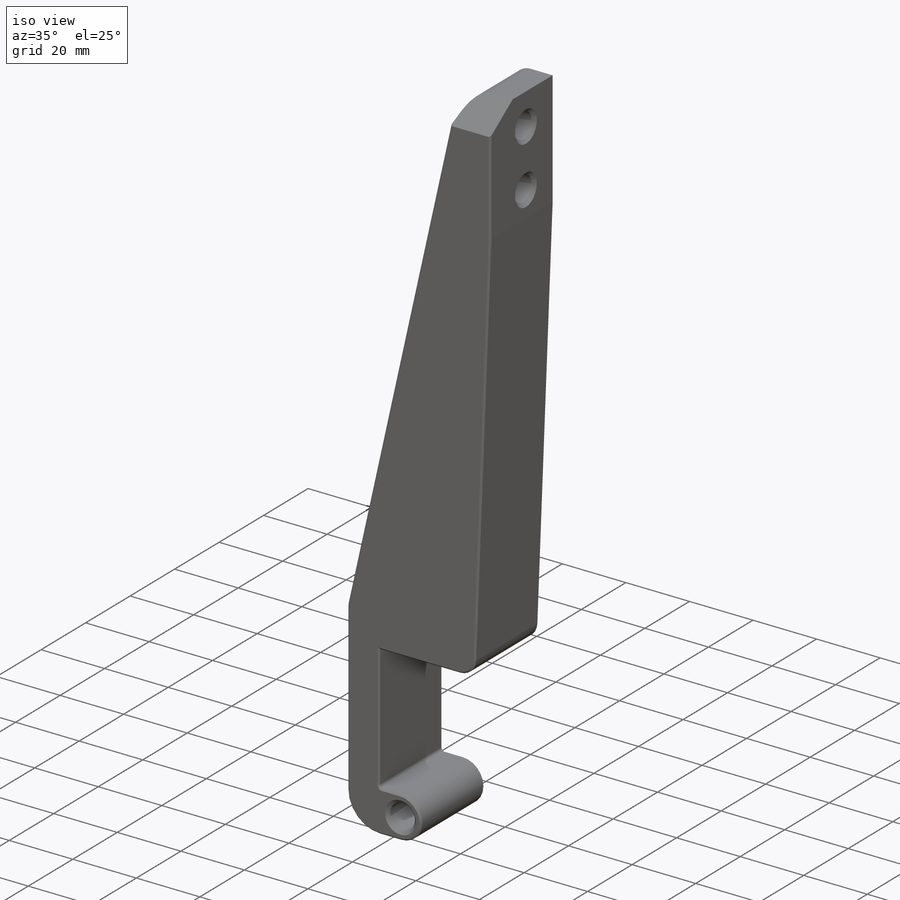
[diagram: iso view]
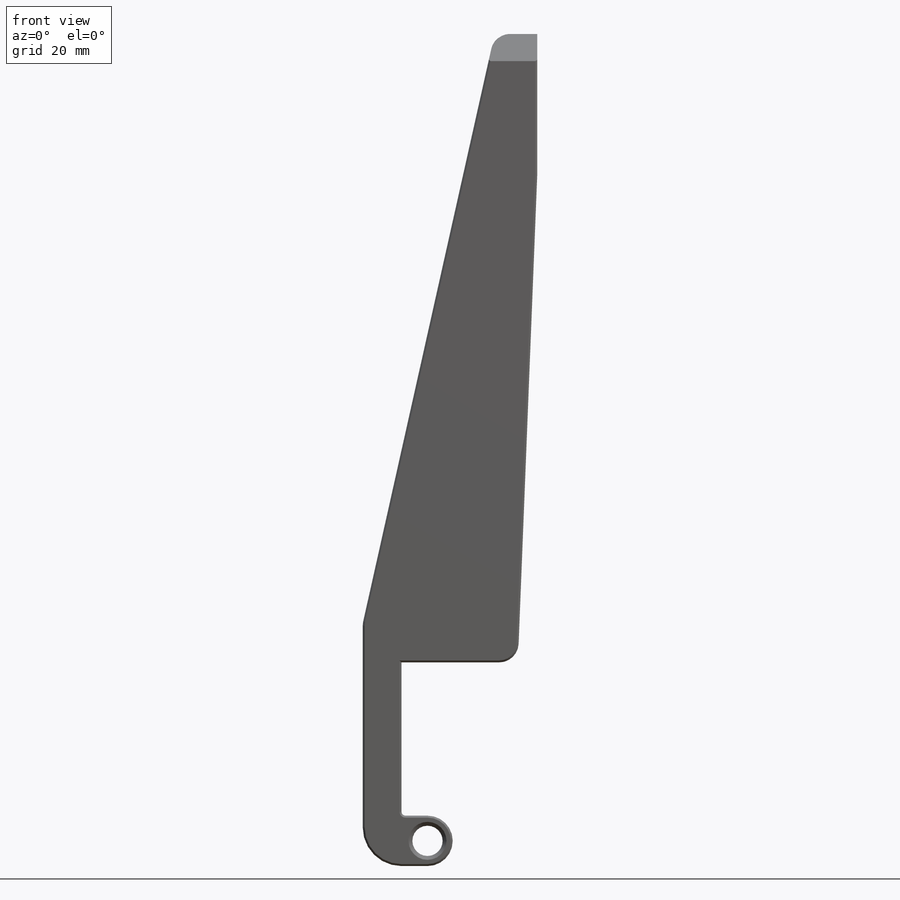
[diagram: front view]
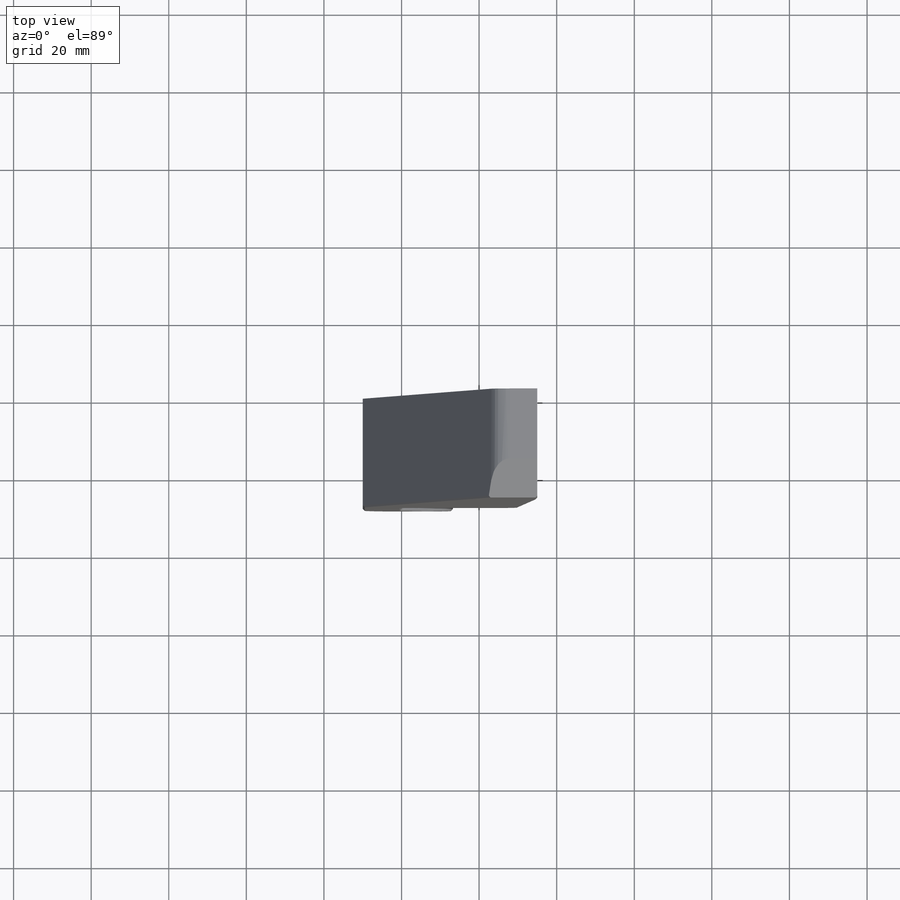
[diagram: top view]
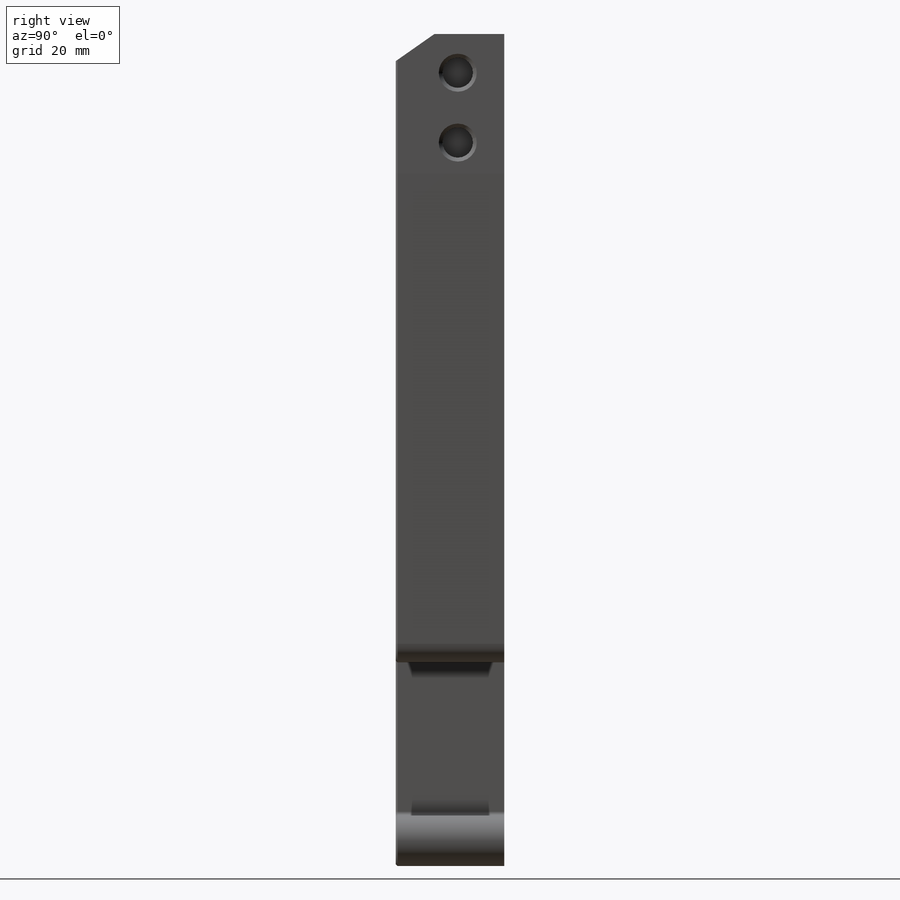
[diagram: right view]
SOLIDWORKS PART (.sldprt)
format: sldprt  version: not decoded by parser v0  size: 315,392 bytes
history: native  units: mm
features: sketch x5, cut_extrude x3, extrude x2, chamfer x2, material x1, fillet x1 (+11 scaffold rows collapsed)
feature tree (25):
  scaffold x11  (default folders/planes/origin — collapsed)
  material  "Material <not specified>"
  sketch  "Sketch1"  dims[D3=13.0mm D4=7.8mm D13=10.0mm D14=1.0mm D15=5.0mm D16=5.0mm D17=5.0mm D1=38.0mm D2=47.0mm D5=8.0mm D6=10.0mm D7=35.0mm D8=162.0mm D9=11.0mm D10=36.0mm D11=30.0mm D12=10.0mm D18=6.7mm]
  extrude  "Boss-Extrude1"  Depth=28mm
  sketch  "Sketch4"  dims[D1=7.8mm D2=18.0mm D3=10.0mm D4=12.0mm]
  cut_extrude  "Cut-Extrude2"  Depth=10mm
  sketch  "Sketch5"  dims[c1.D3=6.0mm c1.D4=7.0mm c1.D1=6.0mm c1.D2=6.0mm c2.D1=4.0mm c2.D2=4.0mm c2.D5=8.0mm]
  cut_extrude  "Cut-Extrude3"  Depth=4mm
  chamfer  "Chamfer1"  Distance=1mm Angle=45deg
  sketch  "Sketch6"  dims[c1.D1=10.0mm c1.D2=~14.072202mm c2.D2=35.0deg]
  cut_extrude  "Cut-Extrude4"  [1 undecoded]
  sketch  "Sketch7"  dims[c1.D3=9.5mm c1.D6=9.5mm c1.D7=4.0mm c1.D1=4.0mm c1.D2=4.0mm c2.D3=2.0mm c2.D4=11.0mm c2.D5=75.0mm c2.D6=~11.681412mm]
  extrude  "Boss-Extrude2"  Depth=8mm
  fillet  "Fillet1"  Radius=3mm
  chamfer  "Chamfer2"  Distance=0.5mm Angle=45deg
decode coverage: 12 of 13 modeling features carry decoded parameters
note: ~ marks probable driven/reference dimensions
note: 1 parameter value undecoded
note: suppression state not decoded; provenance and decode notes live in map.json
